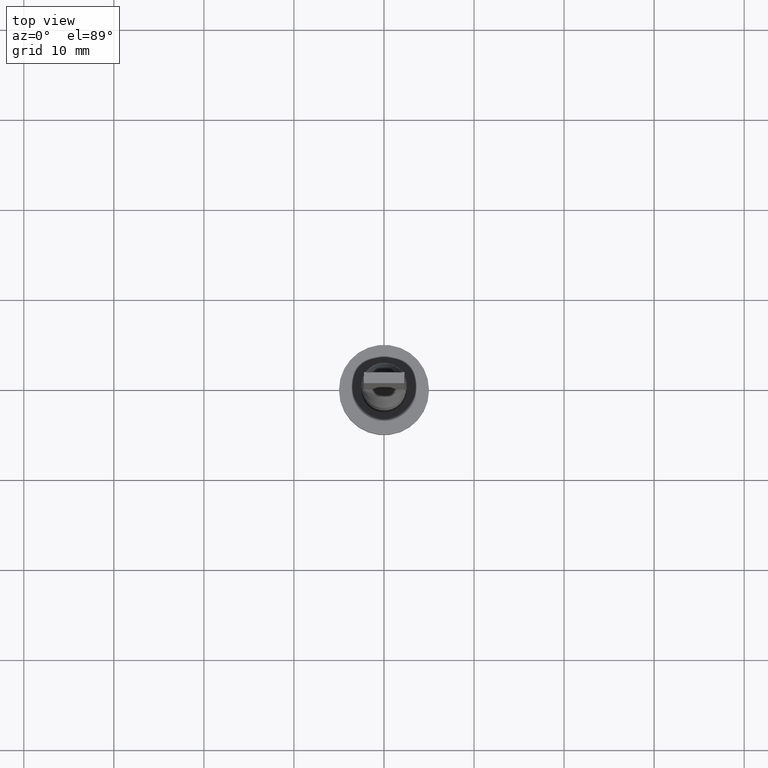
[diagram: clean part render]
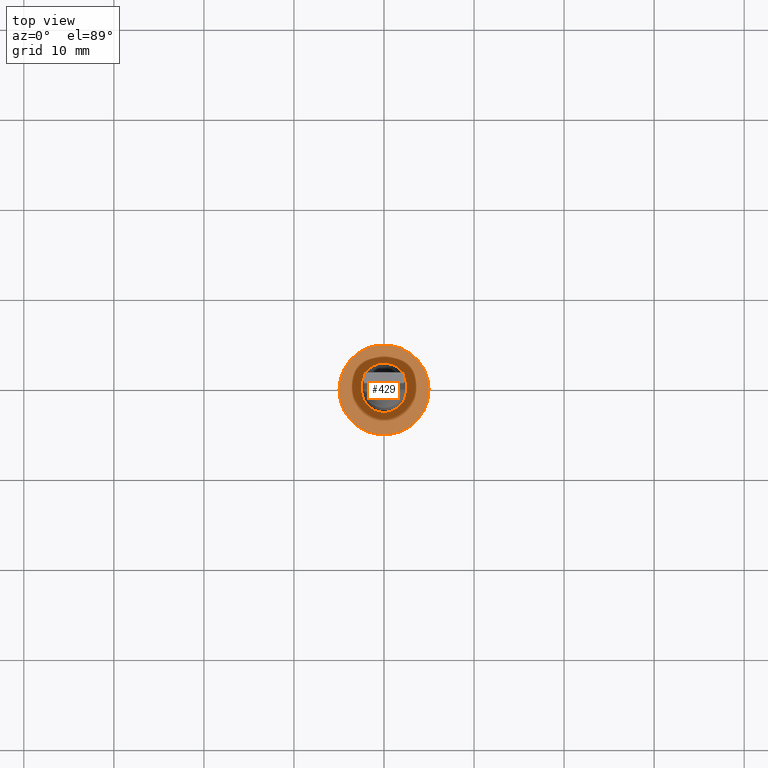
[diagram: same view with one face highlighted and labeled with its STEP entity id]
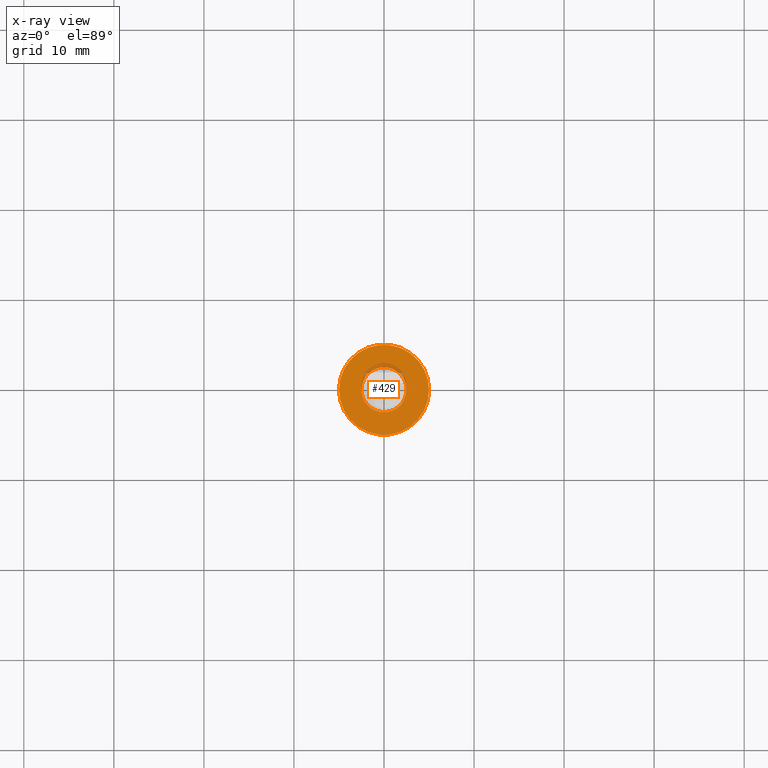
[diagram: x-ray of the same camera — body ghosted, the highlighted face saturated]
A machine part, top view. The second image highlights one B-rep face of the part: STEP entity #429.
The next image is the same camera in x-ray: the body ghosted, the highlighted face saturated — about 4% of this face is hidden behind the body in this view.
In plain terms, the highlighted planar face has unit normal (0, 0, 1).
Its self-contained STEP definition (entity closure, byte-faithful):
#15 = EDGE_CURVE ( 'NONE', #521, #509, #29, .T. ) ;
#29 = CIRCLE ( 'NONE', #512, 2.500000000000000000 ) ;
#32 = CARTESIAN_POINT ( 'NONE',  ( 5.000000000000000000, 6.123233995736766282E-16, 3.000000000000000000 ) ) ;
#81 = PLANE ( 'NONE',  #240 ) ;
#86 = EDGE_LOOP ( 'NONE', ( #441, #119 ) ) ;
#95 = DIRECTION ( 'NONE',  ( 0.000000000000000000, 0.000000000000000000, 1.000000000000000000 ) ) ;
#102 = CARTESIAN_POINT ( 'NONE',  ( 2.500000000000000000, 3.061616997868383141E-16, 3.000000000000000000 ) ) ;
#119 = ORIENTED_EDGE ( 'NONE', *, *, #242, .T. ) ;
#145 = AXIS2_PLACEMENT_3D ( 'NONE', #322, #459, #331 ) ;
#146 = VERTEX_POINT ( 'NONE', #247 ) ;
#159 = CARTESIAN_POINT ( 'NONE',  ( 0.000000000000000000, 0.000000000000000000, 3.000000000000000000 ) ) ;
#165 = FACE_OUTER_BOUND ( 'NONE', #86, .T. ) ;
#200 = AXIS2_PLACEMENT_3D ( 'NONE', #159, #423, #281 ) ;
#213 = DIRECTION ( 'NONE',  ( 1.000000000000000000, 0.000000000000000000, 0.000000000000000000 ) ) ;
#223 = CARTESIAN_POINT ( 'NONE',  ( 0.000000000000000000, 0.000000000000000000, 3.000000000000000000 ) ) ;
#240 = AXIS2_PLACEMENT_3D ( 'NONE', #260, #343, #336 ) ;
#242 = EDGE_CURVE ( 'NONE', #419, #146, #341, .T. ) ;
#247 = CARTESIAN_POINT ( 'NONE',  ( -5.000000000000000000, 0.000000000000000000, 3.000000000000000000 ) ) ;
#258 = EDGE_CURVE ( 'NONE', #509, #521, #526, .T. ) ;
#260 = CARTESIAN_POINT ( 'NONE',  ( 0.000000000000000000, 0.000000000000000000, 3.000000000000000000 ) ) ;
#281 = DIRECTION ( 'NONE',  ( 1.000000000000000000, 0.000000000000000000, 0.000000000000000000 ) ) ;
#282 = EDGE_LOOP ( 'NONE', ( #422, #424 ) ) ;
#306 = DIRECTION ( 'NONE',  ( 0.000000000000000000, 0.000000000000000000, 1.000000000000000000 ) ) ;
#322 = CARTESIAN_POINT ( 'NONE',  ( 0.000000000000000000, 0.000000000000000000, 3.000000000000000000 ) ) ;
#331 = DIRECTION ( 'NONE',  ( 1.000000000000000000, 0.000000000000000000, 0.000000000000000000 ) ) ;
#336 = DIRECTION ( 'NONE',  ( 1.000000000000000000, 0.000000000000000000, -0.000000000000000000 ) ) ;
#341 = CIRCLE ( 'NONE', #200, 5.000000000000000000 ) ;
#343 = DIRECTION ( 'NONE',  ( 0.000000000000000000, 0.000000000000000000, 1.000000000000000000 ) ) ;
#345 = CIRCLE ( 'NONE', #468, 5.000000000000000000 ) ;
#365 = DIRECTION ( 'NONE',  ( 1.000000000000000000, 0.000000000000000000, 0.000000000000000000 ) ) ;
#389 = FACE_BOUND ( 'NONE', #282, .T. ) ;
#407 = CARTESIAN_POINT ( 'NONE',  ( -2.500000000000000000, 0.000000000000000000, 3.000000000000000000 ) ) ;
#419 = VERTEX_POINT ( 'NONE', #32 ) ;
#422 = ORIENTED_EDGE ( 'NONE', *, *, #15, .F. ) ;
#423 = DIRECTION ( 'NONE',  ( 0.000000000000000000, 0.000000000000000000, 1.000000000000000000 ) ) ;
#424 = ORIENTED_EDGE ( 'NONE', *, *, #258, .F. ) ;
#429 = ADVANCED_FACE ( 'NONE', ( #389, #165 ), #81, .T. ) ;
#441 = ORIENTED_EDGE ( 'NONE', *, *, #507, .T. ) ;
#459 = DIRECTION ( 'NONE',  ( 0.000000000000000000, 0.000000000000000000, 1.000000000000000000 ) ) ;
#468 = AXIS2_PLACEMENT_3D ( 'NONE', #223, #95, #365 ) ;
#507 = EDGE_CURVE ( 'NONE', #146, #419, #345, .T. ) ;
#509 = VERTEX_POINT ( 'NONE', #102 ) ;
#512 = AXIS2_PLACEMENT_3D ( 'NONE', #529, #306, #213 ) ;
#521 = VERTEX_POINT ( 'NONE', #407 ) ;
#526 = CIRCLE ( 'NONE', #145, 2.500000000000000000 ) ;
#529 = CARTESIAN_POINT ( 'NONE',  ( 0.000000000000000000, 0.000000000000000000, 3.000000000000000000 ) ) ;